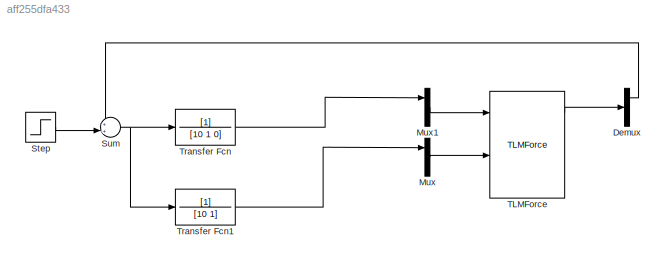
MODEL slx_aff255dfa433
KIND model
CONFIG AbsTol = auto
CONFIG EnableMultiTasking = off
CONFIG FixedStep = auto
CONFIG MaxStep = auto
CONFIG MinStep = auto
CONFIG RelTol = 1e-3
CONFIG SampleTimeConstraint = Unconstrained
CONFIG Solver = VariableStepAuto
CONFIG SolverName = VariableStepAuto
CONFIG StartTime = 0.0
CONFIG StopTime = 10.0
BLOCK [Demux] Demux
  DisplayOption = bar
  Outputs = 3
  Ports = [1, 3]
BLOCK [Mux] Mux
  DisplayOption = bar
  Inputs = 3
  Ports = [3, 1]
BLOCK [Mux] Mux1
  DisplayOption = bar
  Inputs = 3
  Ports = [3, 1]
BLOCK [Step] Step
  After = 100
  SampleTime = 0
BLOCK [Sum] Sum
  IconShape = round
  InputSameDT = off
  Inputs = ++|
  OutDataTypeStr = Inherit: Inherit via internal rule
  Ports = [2, 1]
  SaturateOnIntegerOverflow = off
BLOCK [Reference] TLMForce  REF=TLMLib/TLMForce
  Ports = [4, 4]
  SourceBlock = TLMLib/TLMForce
  SourceType = TLMForceInterface
BLOCK [TransferFcn] Transfer Fcn
  Denominator = [10 1 0]
BLOCK [TransferFcn] Transfer Fcn1
  Denominator = [10 1]
LINE Demux:1 -> Sum:1
LINE Mux1:1 -> TLMForce:1
LINE Mux:1 -> TLMForce:3
LINE Step:1 -> Sum:2
NET Sum:1 -> Transfer Fcn1:1, Transfer Fcn:1
LINE TLMForce:1 -> Demux:1
LINE Transfer Fcn1:1 -> Mux:1
LINE Transfer Fcn:1 -> Mux1:1
note: NET lines group one-source signal fan-out (src -> all destinations, sorted); 1:1 wires keep LINE
